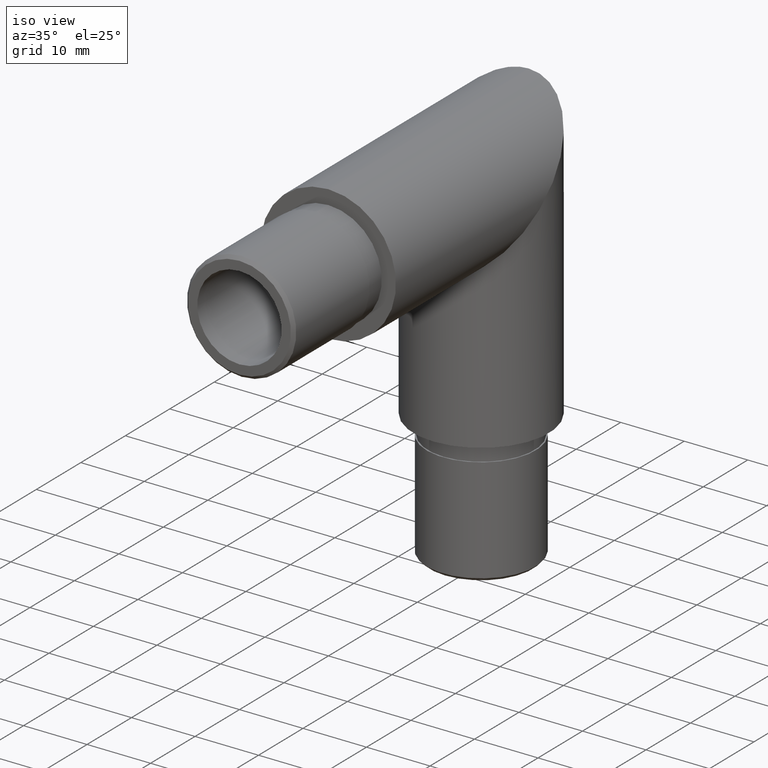
[diagram: clean part render]
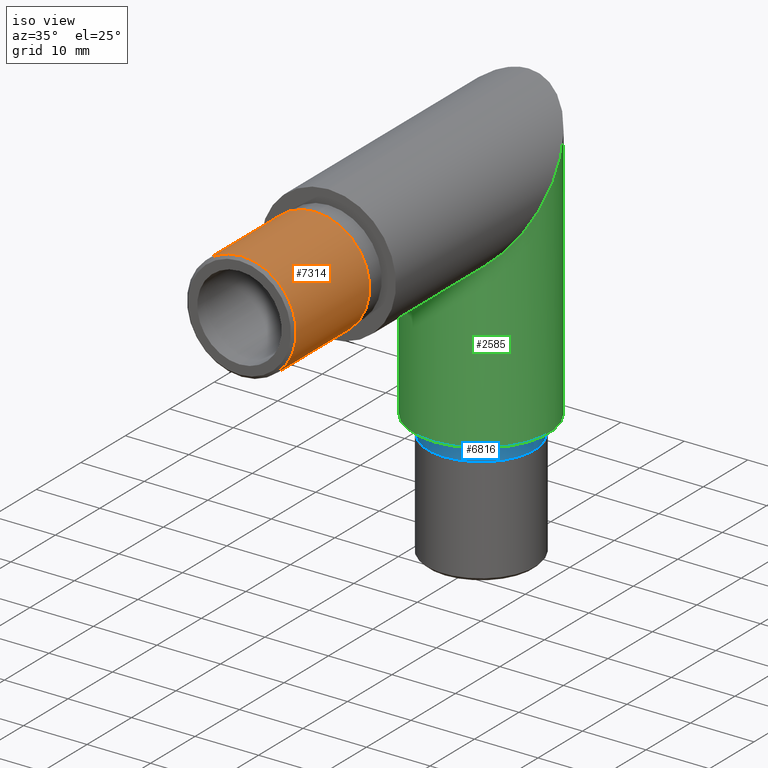
[diagram: same view with three faces highlighted in distinct colors, each labeled with its STEP entity id]
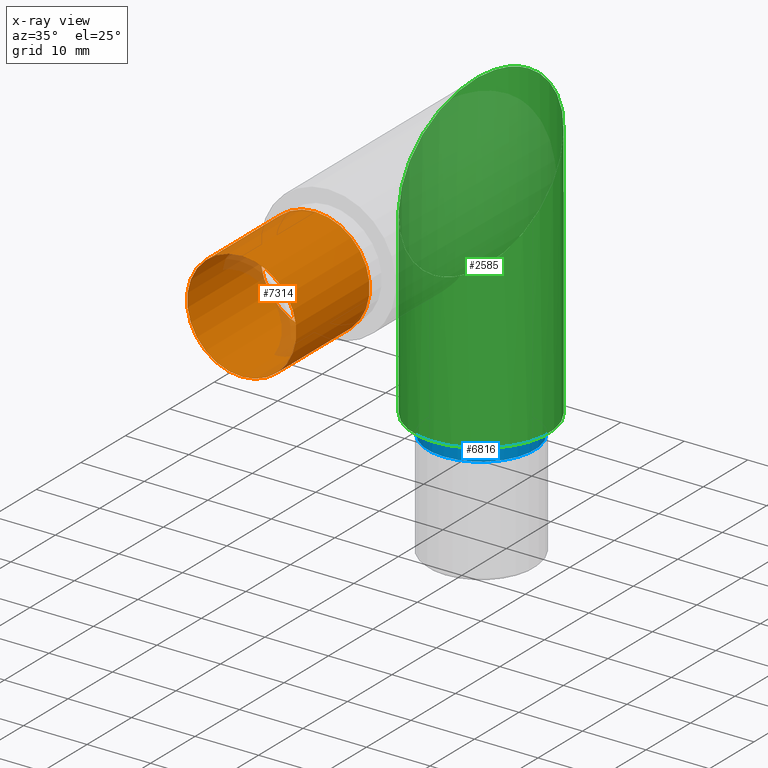
[diagram: x-ray of the same camera — body ghosted, the three highlighted faces saturated]
A machine part, iso view with three faces highlighted in distinct colors.
The next image is the same camera in x-ray (body ghosted, the three faces saturated) — at least one of them is partly hidden behind the body in this view.
Their STEP definitions:

[orange] entity #7314 — the highlighted cylindrical surface (bore or boss wall) has radius 8.6 mm, axis along (-0, 1, 0).
#1198 = ORIENTED_EDGE ( 'NONE', *, *, #12877, .T. ) ;
#1233 = DIRECTION ( 'NONE',  ( -0.0000000000000000000, 1.000000000000000000, 0.0000000000000000000 ) ) ;
#1512 = VERTEX_POINT ( 'NONE', #3656 ) ;
#1746 = FACE_OUTER_BOUND ( 'NONE', #6539, .T. ) ;
#2677 = ORIENTED_EDGE ( 'NONE', *, *, #7743, .T. ) ;
#2837 = FACE_OUTER_BOUND ( 'NONE', #7468, .T. ) ;
#2886 = DIRECTION ( 'NONE',  ( 0.0000000000000000000, -1.000000000000000000, 0.0000000000000000000 ) ) ;
#2965 = DIRECTION ( 'NONE',  ( 0.0000000000000000000, 0.0000000000000000000, -1.000000000000000000 ) ) ;
#3117 = CARTESIAN_POINT ( 'NONE',  ( 0.0000000000000000000, -19.49999999999997900, 0.0000000000000000000 ) ) ;
#3656 = CARTESIAN_POINT ( 'NONE',  ( 0.0000000000000000000, -19.49999999999997900, -8.599999999999999600 ) ) ;
#3738 = CIRCLE ( 'NONE', #8477, 8.599999999999999600 ) ;
#6039 = CYLINDRICAL_SURFACE ( 'NONE', #6158, 8.599999999999999600 ) ;
#6158 = AXIS2_PLACEMENT_3D ( 'NONE', #6332, #1233, #11353 ) ;
#6332 = CARTESIAN_POINT ( 'NONE',  ( 0.0000000000000000000, -20.00000000000000000, 0.0000000000000000000 ) ) ;
#6539 = EDGE_LOOP ( 'NONE', ( #2677 ) ) ;
#6849 = DIRECTION ( 'NONE',  ( 0.0000000000000000000, 0.0000000000000000000, -1.000000000000000000 ) ) ;
#7314 = ADVANCED_FACE ( 'NONE', ( #1746, #2837 ), #6039, .T. ) ;
#7439 = CIRCLE ( 'NONE', #10791, 8.599999999999999600 ) ;
#7468 = EDGE_LOOP ( 'NONE', ( #1198 ) ) ;
#7743 = EDGE_CURVE ( 'NONE', #1512, #1512, #7439, .T. ) ;
#7814 = CARTESIAN_POINT ( 'NONE',  ( 0.0000000000000000000, -3.000000000000000000, -8.599999999999999600 ) ) ;
#8477 = AXIS2_PLACEMENT_3D ( 'NONE', #9015, #2886, #6849 ) ;
#9015 = CARTESIAN_POINT ( 'NONE',  ( 0.0000000000000000000, -3.000000000000000000, 0.0000000000000000000 ) ) ;
#10262 = DIRECTION ( 'NONE',  ( 0.0000000000000000000, 1.000000000000000000, 0.0000000000000000000 ) ) ;
#10791 = AXIS2_PLACEMENT_3D ( 'NONE', #3117, #10262, #2965 ) ;
#11353 = DIRECTION ( 'NONE',  ( 0.0000000000000000000, 0.0000000000000000000, 1.000000000000000000 ) ) ;
#12213 = VERTEX_POINT ( 'NONE', #7814 ) ;
#12877 = EDGE_CURVE ( 'NONE', #12213, #12213, #3738, .T. ) ;

[blue] entity #6816 — the highlighted cylindrical surface (bore or boss wall) has radius 8.4 mm, axis along (-0, 0, 1).
#242 = VERTEX_POINT ( 'NONE', #3783 ) ;
#1901 = CYLINDRICAL_SURFACE ( 'NONE', #4868, 8.399999999999998600 ) ;
#2069 = DIRECTION ( 'NONE',  ( 0.0000000000000000000, 1.000000000000000000, -3.304235192336775900E-015 ) ) ;
#2907 = DIRECTION ( 'NONE',  ( 0.0000000000000000000, -1.000000000000000000, 3.304235192336775900E-015 ) ) ;
#3420 = ORIENTED_EDGE ( 'NONE', *, *, #10852, .T. ) ;
#3637 = CIRCLE ( 'NONE', #9700, 8.399999999999998600 ) ;
#3783 = CARTESIAN_POINT ( 'NONE',  ( 0.0000000000000000000, 42.74999999999987200, -34.35000000000003000 ) ) ;
#4100 = DIRECTION ( 'NONE',  ( 0.0000000000000000000, -3.441691376337984500E-015, -1.000000000000000000 ) ) ;
#4121 = CIRCLE ( 'NONE', #11541, 8.399999999999998600 ) ;
#4702 = ORIENTED_EDGE ( 'NONE', *, *, #10250, .F. ) ;
#4868 = AXIS2_PLACEMENT_3D ( 'NONE', #11201, #9029, #2907 ) ;
#4933 = FACE_OUTER_BOUND ( 'NONE', #5781, .T. ) ;
#5324 = DIRECTION ( 'NONE',  ( 0.0000000000000000000, 1.000000000000000000, -3.304235192336775900E-015 ) ) ;
#5781 = EDGE_LOOP ( 'NONE', ( #4702 ) ) ;
#6215 = FACE_OUTER_BOUND ( 'NONE', #7161, .T. ) ;
#6816 = ADVANCED_FACE ( 'NONE', ( #4933, #6215 ), #1901, .T. ) ;
#7161 = EDGE_LOOP ( 'NONE', ( #3420 ) ) ;
#9029 = DIRECTION ( 'NONE',  ( -0.0000000000000000000, 3.441691376337984500E-015, 1.000000000000000000 ) ) ;
#9263 = DIRECTION ( 'NONE',  ( 0.0000000000000000000, -3.441691376337984500E-015, -1.000000000000000000 ) ) ;
#9700 = AXIS2_PLACEMENT_3D ( 'NONE', #11321, #4100, #2069 ) ;
#10250 = EDGE_CURVE ( 'NONE', #10772, #10772, #3637, .T. ) ;
#10772 = VERTEX_POINT ( 'NONE', #12854 ) ;
#10852 = EDGE_CURVE ( 'NONE', #242, #242, #4121, .T. ) ;
#11201 = CARTESIAN_POINT ( 'NONE',  ( 0.0000000000000000000, 34.34999999999986600, -37.35000000000000100 ) ) ;
#11321 = CARTESIAN_POINT ( 'NONE',  ( 0.0000000000000000000, 34.34999999999986600, -37.35000000000000100 ) ) ;
#11445 = CARTESIAN_POINT ( 'NONE',  ( 0.0000000000000000000, 34.34999999999987400, -34.35000000000000100 ) ) ;
#11541 = AXIS2_PLACEMENT_3D ( 'NONE', #11445, #9263, #5324 ) ;
#12854 = CARTESIAN_POINT ( 'NONE',  ( 0.0000000000000000000, 42.74999999999986500, -37.35000000000003000 ) ) ;

[green] entity #2585 — the highlighted cylindrical surface (bore or boss wall) has radius 10.65 mm, axis along (0, -0, -1).
#1607 = CARTESIAN_POINT ( 'NONE',  ( 0.0000000000000000000, 23.69999999999995700, -10.65000000000000000 ) ) ;
#1887 = AXIS2_PLACEMENT_3D ( 'NONE', #11780, #6627, #5646 ) ;
#2426 = CARTESIAN_POINT ( 'NONE',  ( -1.304248841091931300E-015, 45.00000000000002800, 10.65000000000000000 ) ) ;
#2509 = CARTESIAN_POINT ( 'NONE',  ( 0.0000000000000000000, 34.34999999999988100, -34.34999999999999400 ) ) ;
#2585 = ADVANCED_FACE ( 'NONE', ( #10939, #3748 ), #4399, .T. ) ;
#3521 = CARTESIAN_POINT ( 'NONE',  ( 21.29999999999999700, 23.69999999999995700, -10.65000000000000000 ) ) ;
#3732 = CIRCLE ( 'NONE', #4979, 10.65000000000000000 ) ;
#3748 = FACE_OUTER_BOUND ( 'NONE', #4377, .T. ) ;
#4058 = EDGE_CURVE ( 'NONE', #12044, #12044, #3732, .T. ) ;
#4377 = EDGE_LOOP ( 'NONE', ( #12615 ) ) ;
#4399 = CYLINDRICAL_SURFACE ( 'NONE', #1887, 10.65000000000000000 ) ;
#4845 = CARTESIAN_POINT ( 'NONE',  ( 0.0000000000000000000, 44.99999999999987900, -34.35000000000003000 ) ) ;
#4979 = AXIS2_PLACEMENT_3D ( 'NONE', #2509, #6538, #9683 ) ;
#5646 = DIRECTION ( 'NONE',  ( 0.0000000000000000000, 1.000000000000000000, -3.232090319141650300E-015 ) ) ;
#6037 = EDGE_CURVE ( 'NONE', #9332, #9332, #10335, .T. ) ;
#6538 = DIRECTION ( 'NONE',  ( -0.0000000000000000000, 3.232090319141650300E-015, 1.000000000000000000 ) ) ;
#6627 = DIRECTION ( 'NONE',  ( 0.0000000000000000000, -3.232090319141650300E-015, -1.000000000000000000 ) ) ;
#8604 = CARTESIAN_POINT ( 'NONE',  ( -21.29999999999999700, 23.69999999999995700, -10.65000000000000000 ) ) ;
#8690 = CARTESIAN_POINT ( 'NONE',  ( 0.0000000000000000000, 23.69999999999995700, -10.65000000000000000 ) ) ;
#8727 = CARTESIAN_POINT ( 'NONE',  ( -21.29999999999999700, 45.00000000000002800, 10.64999999999999700 ) ) ;
#9332 = VERTEX_POINT ( 'NONE', #1607 ) ;
#9683 = DIRECTION ( 'NONE',  ( 0.0000000000000000000, 1.000000000000000000, -3.257696668501046200E-015 ) ) ;
#10335 =( BOUNDED_CURVE ( )  B_SPLINE_CURVE ( 3, ( #8690, #8604, #8727, #2426, #10629, #3521, #10671 ),
 .UNSPECIFIED., .T., .F. ) 
 B_SPLINE_CURVE_WITH_KNOTS ( ( 4, 3, 4 ),
 ( 0.0000000000000000000, 3.141592653589793100, 6.283185307179586200 ),
 .UNSPECIFIED. ) 
 CURVE ( )  GEOMETRIC_REPRESENTATION_ITEM ( )  RATIONAL_B_SPLINE_CURVE ( ( 1.000000000000000000, 0.3333333333333333700, 0.3333333333333333700, 1.000000000000000000, 0.3333333333333333700, 0.3333333333333333700, 1.000000000000000000 ) ) 
 REPRESENTATION_ITEM ( '' )  );
#10392 = ORIENTED_EDGE ( 'NONE', *, *, #6037, .T. ) ;
#10405 = EDGE_LOOP ( 'NONE', ( #10392 ) ) ;
#10629 = CARTESIAN_POINT ( 'NONE',  ( 21.29999999999999700, 45.00000000000002800, 10.65000000000000400 ) ) ;
#10671 = CARTESIAN_POINT ( 'NONE',  ( 0.0000000000000000000, 23.69999999999995700, -10.65000000000000000 ) ) ;
#10939 = FACE_OUTER_BOUND ( 'NONE', #10405, .T. ) ;
#11780 = CARTESIAN_POINT ( 'NONE',  ( 0.0000000000000000000, 34.34999999999999400, 0.0000000000000000000 ) ) ;
#12044 = VERTEX_POINT ( 'NONE', #4845 ) ;
#12615 = ORIENTED_EDGE ( 'NONE', *, *, #4058, .T. ) ;